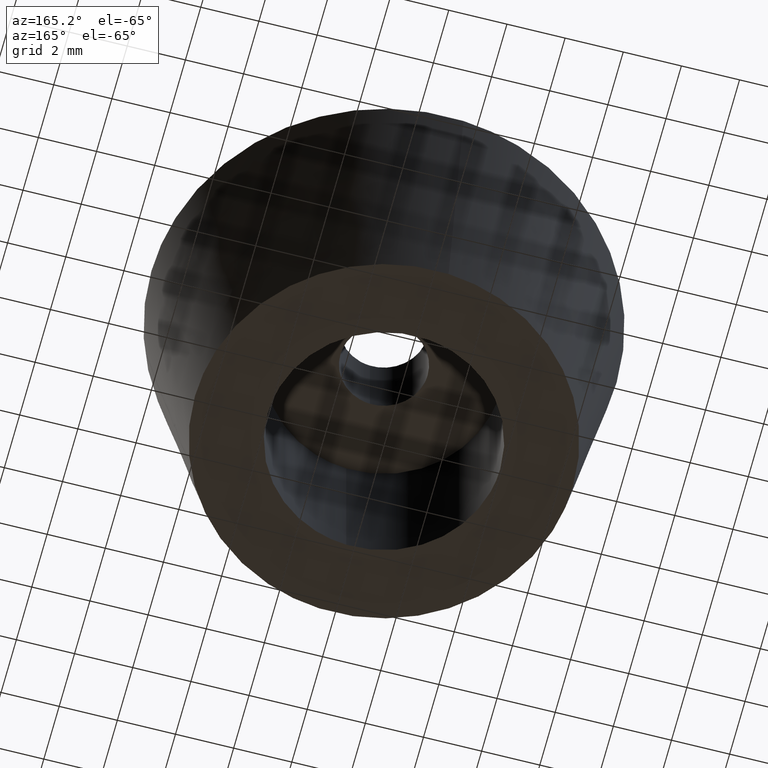
[diagram: clean part render]
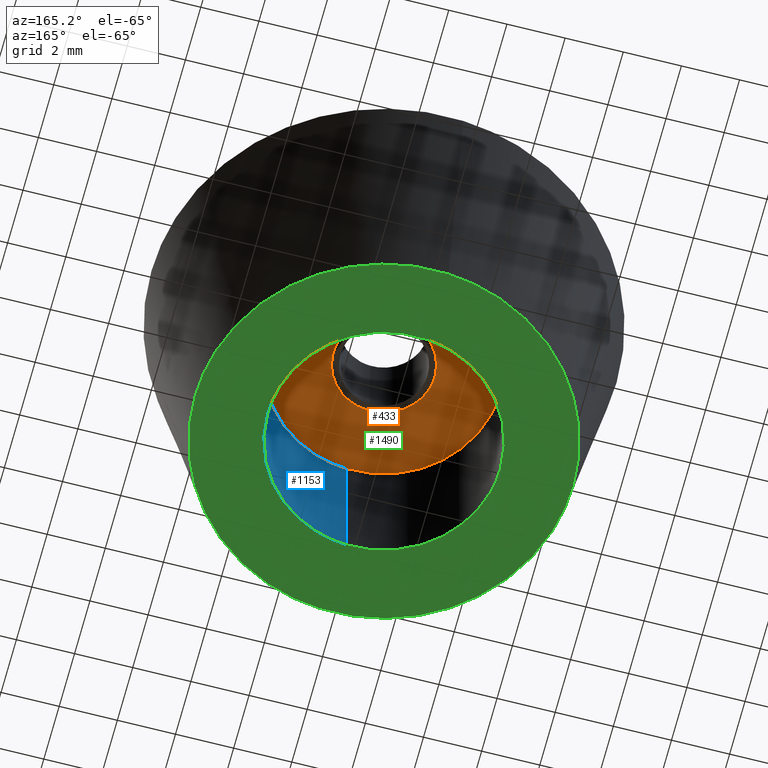
[diagram: same view with three faces highlighted in distinct colors, each labeled with its STEP entity id]
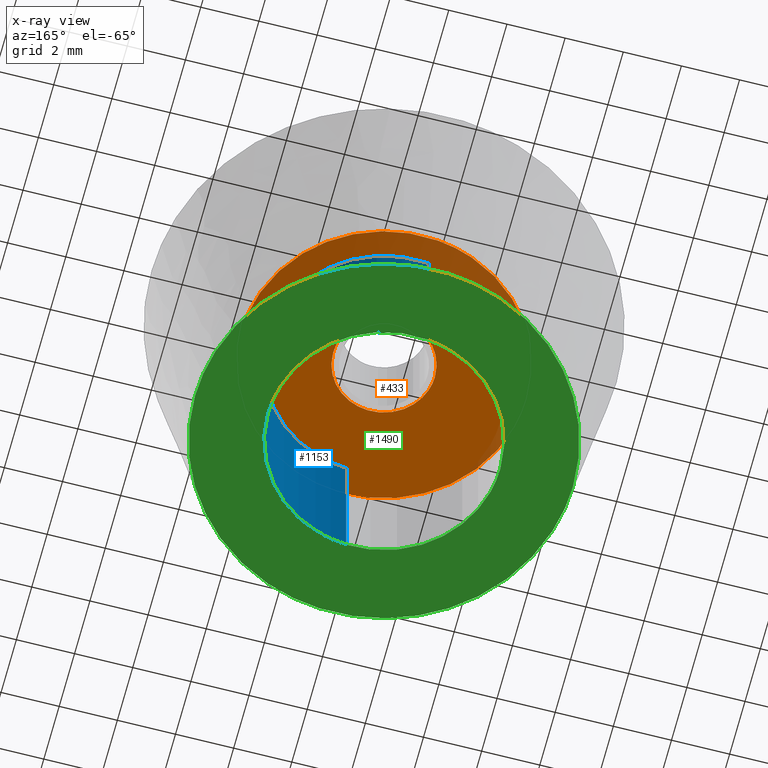
[diagram: x-ray of the same camera — body ghosted, the three highlighted faces saturated]
A machine part, auxiliary view with three faces highlighted in distinct colors.
The next image is the same camera in x-ray (body ghosted, the three faces saturated) — at least one of them is partly hidden behind the body in this view.
Their STEP definitions:

[orange] entity #433 — the highlighted face is a freeform B-spline surface patch.
#66=CARTESIAN_POINT('',(-0.206559910678980,1.737766671132891,5.999999999999999));
#67=VERTEX_POINT('',#66);
#68=CARTESIAN_POINT('',(1.750000000000000,0.0,6.0));
#69=VERTEX_POINT('',#68);
#70=CARTESIAN_POINT('',(-0.206559910678980,1.737766671132892,5.999999999999999));
#71=CARTESIAN_POINT('',(-0.103642209420809,1.750000000000000,6.0));
#72=CARTESIAN_POINT('',(0.0,1.750000000000000,6.0));
#73=CARTESIAN_POINT('',(1.750000000000000,1.750000000000000,6.0));
#74=CARTESIAN_POINT('',(1.750000000000000,0.0,6.0));
#82=(BOUNDED_CURVE()B_SPLINE_CURVE(2,(#70,#71,#72,#73,#74),.UNSPECIFIED.,.F.,.U.)B_SPLINE_CURVE_WITH_KNOTS((3,2,3),(0.229562473509876,0.250000000000000,0.500000000000000),.UNSPECIFIED.)CURVE()GEOMETRIC_REPRESENTATION_ITEM()RATIONAL_B_SPLINE_CURVE((0.956026754176581,0.976055948326890,1.0,0.707106781186547,1.0))REPRESENTATION_ITEM(''));
#83=EDGE_CURVE('',#67,#69,#82,.T.);
#85=CARTESIAN_POINT('',(0.106834944196258,-1.746735897237639,6.0));
#86=VERTEX_POINT('',#85);
#87=CARTESIAN_POINT('',(1.750000000000000,0.0,6.0));
#88=CARTESIAN_POINT('',(1.750000000000000,-1.646235617065599,6.0));
#89=CARTESIAN_POINT('',(0.106834944196258,-1.746735897237639,6.000000000000001));
#97=(BOUNDED_CURVE()B_SPLINE_CURVE(2,(#87,#88,#89),.UNSPECIFIED.,.F.,.U.)B_SPLINE_CURVE_WITH_KNOTS((3,3),(0.500000000000000,0.739332962239942),.UNSPECIFIED.)CURVE()GEOMETRIC_REPRESENTATION_ITEM()RATIONAL_B_SPLINE_CURVE((1.0,0.719603993285539,0.976072041668859))REPRESENTATION_ITEM(''));
#98=EDGE_CURVE('',#69,#86,#97,.T.);
#165=CARTESIAN_POINT('',(-1.750000000000000,0.0,6.0));
#166=VERTEX_POINT('',#165);
#167=CARTESIAN_POINT('',(-1.750000000000000,0.0,6.0));
#168=CARTESIAN_POINT('',(-1.750000000000000,1.554305420361475,6.0));
#169=CARTESIAN_POINT('',(-0.206559910678980,1.737766671132891,5.999999999999999));
#177=(BOUNDED_CURVE()B_SPLINE_CURVE(2,(#167,#168,#169),.UNSPECIFIED.,.F.,.U.)B_SPLINE_CURVE_WITH_KNOTS((3,3),(0.0,0.229562473509877),.UNSPECIFIED.)CURVE()GEOMETRIC_REPRESENTATION_ITEM()RATIONAL_B_SPLINE_CURVE((1.0,0.731050832859657,0.956026754176581))REPRESENTATION_ITEM(''));
#178=EDGE_CURVE('',#166,#67,#177,.T.);
#212=CARTESIAN_POINT('',(0.106834944196258,-1.746735897237639,6.000000000000001));
#213=CARTESIAN_POINT('',(0.053467335782817,-1.750000000000000,6.0));
#214=CARTESIAN_POINT('',(0.0,-1.750000000000000,6.0));
#215=CARTESIAN_POINT('',(-1.750000000000000,-1.750000000000000,6.0));
#216=CARTESIAN_POINT('',(-1.750000000000000,0.0,6.0));
#224=(BOUNDED_CURVE()B_SPLINE_CURVE(2,(#212,#213,#214,#215,#216),.UNSPECIFIED.,.F.,.U.)B_SPLINE_CURVE_WITH_KNOTS((3,2,3),(0.739332962239942,0.750000000000000,1.0),.UNSPECIFIED.)CURVE()GEOMETRIC_REPRESENTATION_ITEM()RATIONAL_B_SPLINE_CURVE((0.976072041668858,0.987502787901008,1.0,0.707106781186547,1.0))REPRESENTATION_ITEM(''));
#225=EDGE_CURVE('',#86,#166,#224,.T.);
#252=CARTESIAN_POINT('',(-0.578364173798473,4.865747104243441,5.999999999999906));
#253=VERTEX_POINT('',#252);
#254=CARTESIAN_POINT('',(4.900000000000000,0.0,6.0));
#255=VERTEX_POINT('',#254);
#256=CARTESIAN_POINT('',(-0.578364173798473,4.865747104243441,5.999999999999906));
#257=CARTESIAN_POINT('',(-0.290196379382123,4.899999999999999,5.999999999999999));
#258=CARTESIAN_POINT('',(0.0,4.900000000000000,6.0));
#259=CARTESIAN_POINT('',(4.899999999999999,4.899999999999999,6.0));
#260=CARTESIAN_POINT('',(4.900000000000000,0.0,6.0));
#268=(BOUNDED_CURVE()B_SPLINE_CURVE(2,(#256,#257,#258,#259,#260),.UNSPECIFIED.,.F.,.U.)B_SPLINE_CURVE_WITH_KNOTS((3,2,3),(0.229562597722473,0.250000000000000,0.500000000000000),.UNSPECIFIED.)CURVE()GEOMETRIC_REPRESENTATION_ITEM()RATIONAL_B_SPLINE_CURVE((0.956026997638499,0.976056093850999,1.0,0.707106781186547,1.0))REPRESENTATION_ITEM(''));
#269=EDGE_CURVE('',#253,#255,#268,.T.);
#310=CARTESIAN_POINT('',(0.299133676091546,-4.890860767166707,5.999999999999897));
#311=VERTEX_POINT('',#310);
#317=CARTESIAN_POINT('',(4.900000000000000,0.0,6.0));
#318=CARTESIAN_POINT('',(4.900000000000000,-4.609463663019517,6.0));
#319=CARTESIAN_POINT('',(0.299133676091546,-4.890860767166707,5.999999999999897));
#327=(BOUNDED_CURVE()B_SPLINE_CURVE(2,(#317,#318,#319),.UNSPECIFIED.,.F.,.U.)B_SPLINE_CURVE_WITH_KNOTS((3,3),(0.500000000000000,0.739333109273585),.UNSPECIFIED.)CURVE()GEOMETRIC_REPRESENTATION_ITEM()RATIONAL_B_SPLINE_CURVE((1.0,0.719603821024912,0.976072356790147))REPRESENTATION_ITEM(''));
#328=EDGE_CURVE('',#255,#311,#327,.T.);
#351=CARTESIAN_POINT('',(-4.900000000000000,0.0,6.0));
#352=VERTEX_POINT('',#351);
#353=CARTESIAN_POINT('',(-4.900000000000000,0.0,6.0));
#354=CARTESIAN_POINT('',(-4.900000000000000,4.352058398167323,5.999999999999999));
#355=CARTESIAN_POINT('',(-0.578364173798473,4.865747104243441,5.999999999999906));
#363=(BOUNDED_CURVE()B_SPLINE_CURVE(2,(#353,#354,#355),.UNSPECIFIED.,.F.,.U.)B_SPLINE_CURVE_WITH_KNOTS((3,3),(0.0,0.229562597722474),.UNSPECIFIED.)CURVE()GEOMETRIC_REPRESENTATION_ITEM()RATIONAL_B_SPLINE_CURVE((1.0,0.731050687335548,0.956026997638499))REPRESENTATION_ITEM(''));
#364=EDGE_CURVE('',#352,#253,#363,.T.);
#366=CARTESIAN_POINT('',(0.299133676091546,-4.890860767166707,5.999999999999897));
#367=CARTESIAN_POINT('',(0.149706450505782,-4.900000000000000,6.0));
#368=CARTESIAN_POINT('',(0.0,-4.900000000000000,6.0));
#369=CARTESIAN_POINT('',(-4.899999999999999,-4.899999999999999,6.0));
#370=CARTESIAN_POINT('',(-4.900000000000000,0.0,6.0));
#378=(BOUNDED_CURVE()B_SPLINE_CURVE(2,(#366,#367,#368,#369,#370),.UNSPECIFIED.,.F.,.U.)B_SPLINE_CURVE_WITH_KNOTS((3,2,3),(0.739333109273585,0.750000000000000,1.0),.UNSPECIFIED.)CURVE()GEOMETRIC_REPRESENTATION_ITEM()RATIONAL_B_SPLINE_CURVE((0.976072356790147,0.987502960161636,1.0,0.707106781186547,1.0))REPRESENTATION_ITEM(''));
#379=EDGE_CURVE('',#311,#352,#378,.T.);
#416=CARTESIAN_POINT('',(-5.389510073001086,-5.389390995347225,6.0));
#417=CARTESIAN_POINT('',(5.389510248238743,-5.389390995347225,6.0));
#418=CARTESIAN_POINT('',(-5.389510073001086,5.389420873367512,6.0));
#419=CARTESIAN_POINT('',(5.389510248238743,5.389420873367512,6.0));
#420=B_SPLINE_SURFACE_WITH_KNOTS('',1,1,((#416,#418),(#417,#419)),.UNSPECIFIED.,.F.,.F.,.U.,(2,2),(2,2),(0.0,10.779020321239830),(0.0,10.778811868714740),.UNSPECIFIED.);
#421=ORIENTED_EDGE('',*,*,#364,.T.);
#422=ORIENTED_EDGE('',*,*,#269,.T.);
#423=ORIENTED_EDGE('',*,*,#328,.T.);
#424=ORIENTED_EDGE('',*,*,#379,.T.);
#425=EDGE_LOOP('',(#421,#422,#423,#424));
#426=FACE_OUTER_BOUND('',#425,.T.);
#427=ORIENTED_EDGE('',*,*,#98,.F.);
#428=ORIENTED_EDGE('',*,*,#83,.F.);
#429=ORIENTED_EDGE('',*,*,#178,.F.);
#430=ORIENTED_EDGE('',*,*,#225,.F.);
#431=EDGE_LOOP('',(#427,#428,#429,#430));
#432=FACE_BOUND('',#431,.T.);
#433=ADVANCED_FACE('',(#426,#432),#420,.F.);

[blue] entity #1153 — the highlighted face is a freeform B-spline surface patch.
#1051=CARTESIAN_POINT('',(-0.472136938627034,3.972038105454666,6.150000000000001));
#1052=CARTESIAN_POINT('',(-0.358458914551911,3.985550461794422,6.150000000000001));
#1053=CARTESIAN_POINT('',(-0.244194158139428,3.992539193687467,6.150000000000001));
#1054=CARTESIAN_POINT('',(3.748345035548039,4.236733351826894,6.150000000000002));
#1055=CARTESIAN_POINT('',(3.992539193687467,0.244194158139428,6.150000000000001));
#1056=CARTESIAN_POINT('',(4.236733351826894,-3.748345035548039,6.150000000000002));
#1057=CARTESIAN_POINT('',(0.244194158139428,-3.992539193687467,6.150000000000001));
#1058=CARTESIAN_POINT('',(-0.472136938627034,3.972038105454666,-0.153750000000000));
#1059=CARTESIAN_POINT('',(-0.358458914551911,3.985550461794422,-0.153750000000001));
#1060=CARTESIAN_POINT('',(-0.244194158139428,3.992539193687467,-0.153750000000001));
#1061=CARTESIAN_POINT('',(3.748345035548039,4.236733351826894,-0.153750000000000));
#1062=CARTESIAN_POINT('',(3.992539193687467,0.244194158139428,-0.153750000000001));
#1063=CARTESIAN_POINT('',(4.236733351826894,-3.748345035548039,-0.153750000000000));
#1064=CARTESIAN_POINT('',(0.244194158139428,-3.992539193687467,-0.153750000000001));
#1072=(BOUNDED_SURFACE()B_SPLINE_SURFACE(2,1,((#1051,#1058),(#1052,#1059),(#1053,#1060),(#1054,#1061),(#1055,#1062),(#1056,#1063),(#1057,#1064)),.UNSPECIFIED.,.F.,.F.,.U.)B_SPLINE_SURFACE_WITH_KNOTS((3,2,2,3),(2,2),(0.0,0.265096679918781,6.892513677888299,13.519930675857820),(0.0,6.303750000000003),.UNSPECIFIED.)GEOMETRIC_REPRESENTATION_ITEM()RATIONAL_B_SPLINE_SURFACE(((0.977505800795127,0.977505800795127),(0.988284271247462,0.988284271247462),(1.0,1.0),(0.707106781186548,0.707106781186548),(1.0,1.0),(0.707106781186548,0.707106781186548),(1.0,1.0)))REPRESENTATION_ITEM('')SURFACE());
#1073=CARTESIAN_POINT('',(-0.472135276174555,3.972038303061637,5.999999999999996));
#1074=VERTEX_POINT('',#1073);
#1075=CARTESIAN_POINT('',(4.0,0.0,6.0));
#1076=VERTEX_POINT('',#1075);
#1077=CARTESIAN_POINT('',(-0.472135276174555,3.972038303061638,5.999999999999996));
#1078=CARTESIAN_POINT('',(-0.236895638593835,4.0,6.0));
#1079=CARTESIAN_POINT('',(0.0,4.0,6.0));
#1080=CARTESIAN_POINT('',(4.000000000000000,4.000000000000000,6.0));
#1081=CARTESIAN_POINT('',(4.0,0.0,6.0));
#1089=(BOUNDED_CURVE()B_SPLINE_CURVE(2,(#1077,#1078,#1079,#1080,#1081),.UNSPECIFIED.,.F.,.U.)B_SPLINE_CURVE_WITH_KNOTS((3,2,3),(0.229562544250081,0.250000000000000,0.500000000000000),.UNSPECIFIED.)CURVE()GEOMETRIC_REPRESENTATION_ITEM()RATIONAL_B_SPLINE_CURVE((0.956026892830324,0.976056031204195,1.0,0.707106781186548,1.0))REPRESENTATION_ITEM(''));
#1090=EDGE_CURVE('',#1074,#1076,#1089,.T.);
#1091=ORIENTED_EDGE('',*,*,#1090,.F.);
#1092=CARTESIAN_POINT('',(-0.472135296181069,3.972038300683576,5.394914E-016));
#1093=VERTEX_POINT('',#1092);
#1094=CARTESIAN_POINT('',(-0.472135276174555,3.972038303061637,5.999999999999996));
#1095=CARTESIAN_POINT('',(-0.472135296181069,3.972038300683576,5.394914E-016));
#1096=QUASI_UNIFORM_CURVE('',1,(#1094,#1095),.UNSPECIFIED.,.F.,.U.);
#1097=EDGE_CURVE('',#1074,#1093,#1096,.T.);
#1098=ORIENTED_EDGE('',*,*,#1097,.T.);
#1099=CARTESIAN_POINT('',(4.0,0.0,0.0));
#1100=VERTEX_POINT('',#1099);
#1101=CARTESIAN_POINT('',(-0.472135296181069,3.972038300683576,5.394914E-016));
#1102=CARTESIAN_POINT('',(-0.236895648702844,4.000000000000001,0.0));
#1103=CARTESIAN_POINT('',(0.0,4.0,0.0));
#1104=CARTESIAN_POINT('',(4.000000000000000,4.000000000000000,0.0));
#1105=CARTESIAN_POINT('',(4.0,0.0,0.0));
#1113=(BOUNDED_CURVE()B_SPLINE_CURVE(2,(#1101,#1102,#1103,#1104,#1105),.UNSPECIFIED.,.F.,.U.)B_SPLINE_CURVE_WITH_KNOTS((3,2,3),(0.229562543398839,0.250000000000000,0.500000000000000),.UNSPECIFIED.)CURVE()GEOMETRIC_REPRESENTATION_ITEM()RATIONAL_B_SPLINE_CURVE((0.956026891161853,0.976056030206903,1.0,0.707106781186548,1.0))REPRESENTATION_ITEM(''));
#1114=EDGE_CURVE('',#1093,#1100,#1113,.T.);
#1115=ORIENTED_EDGE('',*,*,#1114,.T.);
#1116=CARTESIAN_POINT('',(0.244191539836600,-3.992539353828005,-5.134781E-016));
#1117=VERTEX_POINT('',#1116);
#1118=CARTESIAN_POINT('',(4.0,0.0,0.0));
#1119=CARTESIAN_POINT('',(4.0,-3.762826739890751,0.0));
#1120=CARTESIAN_POINT('',(0.244191539836600,-3.992539353828005,-5.134781E-016));
#1128=(BOUNDED_CURVE()B_SPLINE_CURVE(2,(#1118,#1119,#1120),.UNSPECIFIED.,.F.,.U.)B_SPLINE_CURVE_WITH_KNOTS((3,3),(0.500000000000000,0.739333075397974),.UNSPECIFIED.)CURVE()GEOMETRIC_REPRESENTATION_ITEM()RATIONAL_B_SPLINE_CURVE((1.0,0.719603860712659,0.976072284188181))REPRESENTATION_ITEM(''));
#1129=EDGE_CURVE('',#1100,#1117,#1128,.T.);
#1130=ORIENTED_EDGE('',*,*,#1129,.T.);
#1131=CARTESIAN_POINT('',(0.244191507870781,-3.992539355783076,6.000000000000009));
#1132=VERTEX_POINT('',#1131);
#1133=CARTESIAN_POINT('',(0.244191507870781,-3.992539355783076,6.000000000000009));
#1134=CARTESIAN_POINT('',(0.244191539836600,-3.992539353828005,-5.134781E-016));
#1135=QUASI_UNIFORM_CURVE('',1,(#1133,#1134),.UNSPECIFIED.,.F.,.U.);
#1136=EDGE_CURVE('',#1132,#1117,#1135,.T.);
#1137=ORIENTED_EDGE('',*,*,#1136,.F.);
#1138=CARTESIAN_POINT('',(4.0,0.0,6.0));
#1139=CARTESIAN_POINT('',(4.000000000000000,-3.762826770073696,6.0));
#1140=CARTESIAN_POINT('',(0.244191507870781,-3.992539355783075,6.000000000000009));
#1148=(BOUNDED_CURVE()B_SPLINE_CURVE(2,(#1138,#1139,#1140),.UNSPECIFIED.,.F.,.U.)B_SPLINE_CURVE_WITH_KNOTS((3,3),(0.500000000000000,0.739333076779450),.UNSPECIFIED.)CURVE()GEOMETRIC_REPRESENTATION_ITEM()RATIONAL_B_SPLINE_CURVE((1.0,0.719603859094159,0.976072287148952))REPRESENTATION_ITEM(''));
#1149=EDGE_CURVE('',#1076,#1132,#1148,.T.);
#1150=ORIENTED_EDGE('',*,*,#1149,.F.);
#1151=EDGE_LOOP('',(#1091,#1098,#1115,#1130,#1137,#1150));
#1152=FACE_OUTER_BOUND('',#1151,.T.);
#1153=ADVANCED_FACE('',(#1152),#1072,.F.);

[green] entity #1490 — the highlighted face is a freeform B-spline surface patch.
#1092=CARTESIAN_POINT('',(-0.472135296181069,3.972038300683576,5.394914E-016));
#1093=VERTEX_POINT('',#1092);
#1099=CARTESIAN_POINT('',(4.0,0.0,0.0));
#1100=VERTEX_POINT('',#1099);
#1101=CARTESIAN_POINT('',(-0.472135296181069,3.972038300683576,5.394914E-016));
#1102=CARTESIAN_POINT('',(-0.236895648702844,4.000000000000001,0.0));
#1103=CARTESIAN_POINT('',(0.0,4.0,0.0));
#1104=CARTESIAN_POINT('',(4.000000000000000,4.000000000000000,0.0));
#1105=CARTESIAN_POINT('',(4.0,0.0,0.0));
#1113=(BOUNDED_CURVE()B_SPLINE_CURVE(2,(#1101,#1102,#1103,#1104,#1105),.UNSPECIFIED.,.F.,.U.)B_SPLINE_CURVE_WITH_KNOTS((3,2,3),(0.229562543398839,0.250000000000000,0.500000000000000),.UNSPECIFIED.)CURVE()GEOMETRIC_REPRESENTATION_ITEM()RATIONAL_B_SPLINE_CURVE((0.956026891161853,0.976056030206903,1.0,0.707106781186548,1.0))REPRESENTATION_ITEM(''));
#1114=EDGE_CURVE('',#1093,#1100,#1113,.T.);
#1116=CARTESIAN_POINT('',(0.244191539836600,-3.992539353828005,-5.134781E-016));
#1117=VERTEX_POINT('',#1116);
#1118=CARTESIAN_POINT('',(4.0,0.0,0.0));
#1119=CARTESIAN_POINT('',(4.0,-3.762826739890751,0.0));
#1120=CARTESIAN_POINT('',(0.244191539836600,-3.992539353828005,-5.134781E-016));
#1128=(BOUNDED_CURVE()B_SPLINE_CURVE(2,(#1118,#1119,#1120),.UNSPECIFIED.,.F.,.U.)B_SPLINE_CURVE_WITH_KNOTS((3,3),(0.500000000000000,0.739333075397974),.UNSPECIFIED.)CURVE()GEOMETRIC_REPRESENTATION_ITEM()RATIONAL_B_SPLINE_CURVE((1.0,0.719603860712659,0.976072284188181))REPRESENTATION_ITEM(''));
#1129=EDGE_CURVE('',#1100,#1117,#1128,.T.);
#1203=CARTESIAN_POINT('',(-4.0,0.0,0.0));
#1204=VERTEX_POINT('',#1203);
#1205=CARTESIAN_POINT('',(0.244191539836600,-3.992539353828005,-5.134781E-016));
#1206=CARTESIAN_POINT('',(0.122209740372274,-4.000000000000000,0.0));
#1207=CARTESIAN_POINT('',(0.0,-4.0,0.0));
#1208=CARTESIAN_POINT('',(-4.000000000000000,-4.000000000000000,0.0));
#1209=CARTESIAN_POINT('',(-4.0,0.0,0.0));
#1217=(BOUNDED_CURVE()B_SPLINE_CURVE(2,(#1205,#1206,#1207,#1208,#1209),.UNSPECIFIED.,.F.,.U.)B_SPLINE_CURVE_WITH_KNOTS((3,2,3),(0.739333075397974,0.750000000000000,1.0),.UNSPECIFIED.)CURVE()GEOMETRIC_REPRESENTATION_ITEM()RATIONAL_B_SPLINE_CURVE((0.976072284188181,0.987502920473888,1.0,0.707106781186548,1.0))REPRESENTATION_ITEM(''));
#1218=EDGE_CURVE('',#1117,#1204,#1217,.T.);
#1220=CARTESIAN_POINT('',(-4.0,0.0,0.0));
#1221=CARTESIAN_POINT('',(-4.000000000000001,3.552699583195312,0.0));
#1222=CARTESIAN_POINT('',(-0.472135296181069,3.972038300683576,5.394914E-016));
#1230=(BOUNDED_CURVE()B_SPLINE_CURVE(2,(#1220,#1221,#1222),.UNSPECIFIED.,.F.,.U.)B_SPLINE_CURVE_WITH_KNOTS((3,3),(0.0,0.229562543398839),.UNSPECIFIED.)CURVE()GEOMETRIC_REPRESENTATION_ITEM()RATIONAL_B_SPLINE_CURVE((1.0,0.731050750979645,0.956026891161853))REPRESENTATION_ITEM(''));
#1231=EDGE_CURVE('',#1204,#1093,#1230,.T.);
#1255=CARTESIAN_POINT('',(-6.500000000000000,0.0,0.0));
#1256=VERTEX_POINT('',#1255);
#1257=CARTESIAN_POINT('',(-0.509981792838668,6.479962686144105,-0.000000995606649));
#1258=VERTEX_POINT('',#1257);
#1259=CARTESIAN_POINT('',(-6.500000000000000,0.0,0.0));
#1260=CARTESIAN_POINT('',(-6.499999993490481,6.008540267563153,-0.000000497803324));
#1261=CARTESIAN_POINT('',(-0.509981792838668,6.479962686144105,-0.000000995606649));
#1269=(BOUNDED_CURVE()B_SPLINE_CURVE(2,(#1259,#1260,#1261),.UNSPECIFIED.,.F.,.U.)B_SPLINE_CURVE_WITH_KNOTS((3,3),(0.0,0.236331361911381),.UNSPECIFIED.)CURVE()GEOMETRIC_REPRESENTATION_ITEM()RATIONAL_B_SPLINE_CURVE((1.0,0.723120586812835,0.969723484055643))REPRESENTATION_ITEM(''));
#1270=EDGE_CURVE('',#1256,#1258,#1269,.T.);
#1272=CARTESIAN_POINT('',(0.509981792838667,-6.479962686144106,-0.000000995606649));
#1273=VERTEX_POINT('',#1272);
#1274=CARTESIAN_POINT('',(0.509981792838667,-6.479962686144106,-0.000000995606649));
#1275=CARTESIAN_POINT('',(0.255384519205838,-6.499999837580684,-0.000000977526806));
#1276=CARTESIAN_POINT('',(-0.000000012526858,-6.499999840830419,-0.000000957968149));
#1277=CARTESIAN_POINT('',(-6.500000006017340,-6.499999923542092,-0.000000460164825));
#1278=CARTESIAN_POINT('',(-6.500000000000000,0.0,0.0));
#1286=(BOUNDED_CURVE()B_SPLINE_CURVE(2,(#1274,#1275,#1276,#1277,#1278),.UNSPECIFIED.,.F.,.U.)B_SPLINE_CURVE_WITH_KNOTS((3,2,3),(0.736331361911381,0.750000000000000,1.0),.UNSPECIFIED.)CURVE()GEOMETRIC_REPRESENTATION_ITEM()RATIONAL_B_SPLINE_CURVE((0.969723484055643,0.983986194373713,1.0,0.707106781186547,1.0))REPRESENTATION_ITEM(''));
#1287=EDGE_CURVE('',#1273,#1256,#1286,.T.);
#1354=CARTESIAN_POINT('',(6.500000000000000,0.0,0.0));
#1355=VERTEX_POINT('',#1354);
#1356=CARTESIAN_POINT('',(-0.509981792838668,6.479962686144105,-0.000000995606649));
#1357=CARTESIAN_POINT('',(-0.255384519205838,6.499999837580685,-0.000000977526806));
#1358=CARTESIAN_POINT('',(0.000000012526860,6.499999840830420,-0.000000957968149));
#1359=CARTESIAN_POINT('',(6.500000006017340,6.499999923542092,-0.000000460164825));
#1360=CARTESIAN_POINT('',(6.500000000000000,0.0,0.0));
#1368=(BOUNDED_CURVE()B_SPLINE_CURVE(2,(#1356,#1357,#1358,#1359,#1360),.UNSPECIFIED.,.F.,.U.)B_SPLINE_CURVE_WITH_KNOTS((3,2,3),(0.236331361911381,0.250000000000000,0.500000000000000),.UNSPECIFIED.)CURVE()GEOMETRIC_REPRESENTATION_ITEM()RATIONAL_B_SPLINE_CURVE((0.969723484055643,0.983986194373713,1.0,0.707106781186547,1.0))REPRESENTATION_ITEM(''));
#1369=EDGE_CURVE('',#1258,#1355,#1368,.T.);
#1403=CARTESIAN_POINT('',(6.500000000000000,0.0,0.0));
#1404=CARTESIAN_POINT('',(6.499999993490482,-6.008540267563155,-0.000000497803324));
#1405=CARTESIAN_POINT('',(0.509981792838667,-6.479962686144106,-0.000000995606649));
#1413=(BOUNDED_CURVE()B_SPLINE_CURVE(2,(#1403,#1404,#1405),.UNSPECIFIED.,.F.,.U.)B_SPLINE_CURVE_WITH_KNOTS((3,3),(0.500000000000000,0.736331361911381),.UNSPECIFIED.)CURVE()GEOMETRIC_REPRESENTATION_ITEM()RATIONAL_B_SPLINE_CURVE((1.0,0.723120586812835,0.969723484055643))REPRESENTATION_ITEM(''));
#1414=EDGE_CURVE('',#1355,#1273,#1413,.T.);
#1473=CARTESIAN_POINT('',(-7.149349974803477,-7.147365892724539,0.0));
#1474=CARTESIAN_POINT('',(7.149350323490650,-7.147365892724539,0.0));
#1475=CARTESIAN_POINT('',(-7.149349974803477,7.147366241411713,0.0));
#1476=CARTESIAN_POINT('',(7.149350323490650,7.147366241411713,0.0));
#1477=B_SPLINE_SURFACE_WITH_KNOTS('',1,1,((#1473,#1475),(#1474,#1476)),.UNSPECIFIED.,.F.,.F.,.U.,(2,2),(2,2),(0.0,14.298700298294129),(0.0,14.294732134136250),.UNSPECIFIED.);
#1478=ORIENTED_EDGE('',*,*,#1270,.T.);
#1479=ORIENTED_EDGE('',*,*,#1369,.T.);
#1480=ORIENTED_EDGE('',*,*,#1414,.T.);
#1481=ORIENTED_EDGE('',*,*,#1287,.T.);
#1482=EDGE_LOOP('',(#1478,#1479,#1480,#1481));
#1483=FACE_OUTER_BOUND('',#1482,.T.);
#1484=ORIENTED_EDGE('',*,*,#1129,.F.);
#1485=ORIENTED_EDGE('',*,*,#1114,.F.);
#1486=ORIENTED_EDGE('',*,*,#1231,.F.);
#1487=ORIENTED_EDGE('',*,*,#1218,.F.);
#1488=EDGE_LOOP('',(#1484,#1485,#1486,#1487));
#1489=FACE_BOUND('',#1488,.T.);
#1490=ADVANCED_FACE('',(#1483,#1489),#1477,.F.);